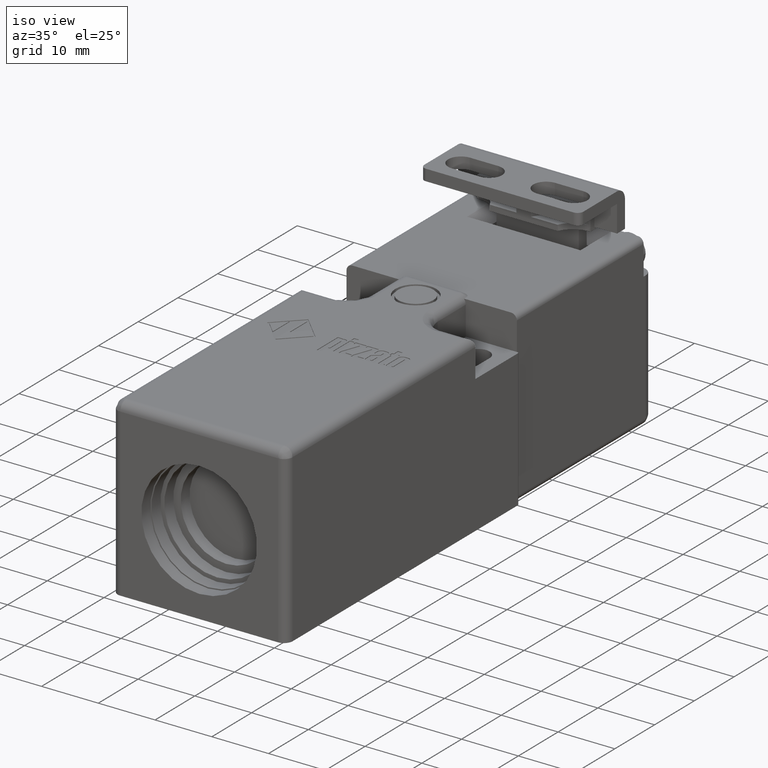
[diagram: clean part render]
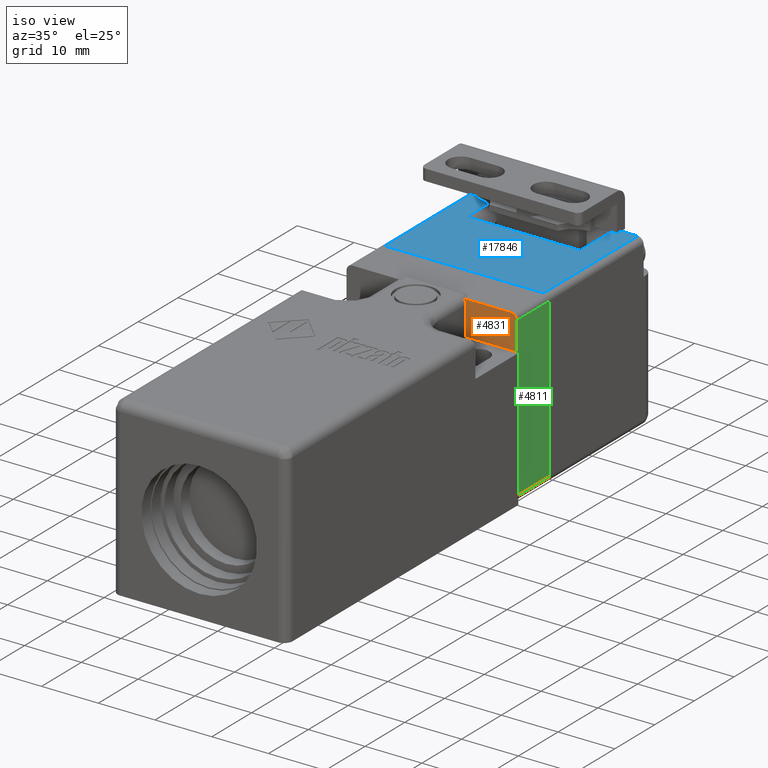
[diagram: same view with three faces highlighted in distinct colors, each labeled with its STEP entity id]
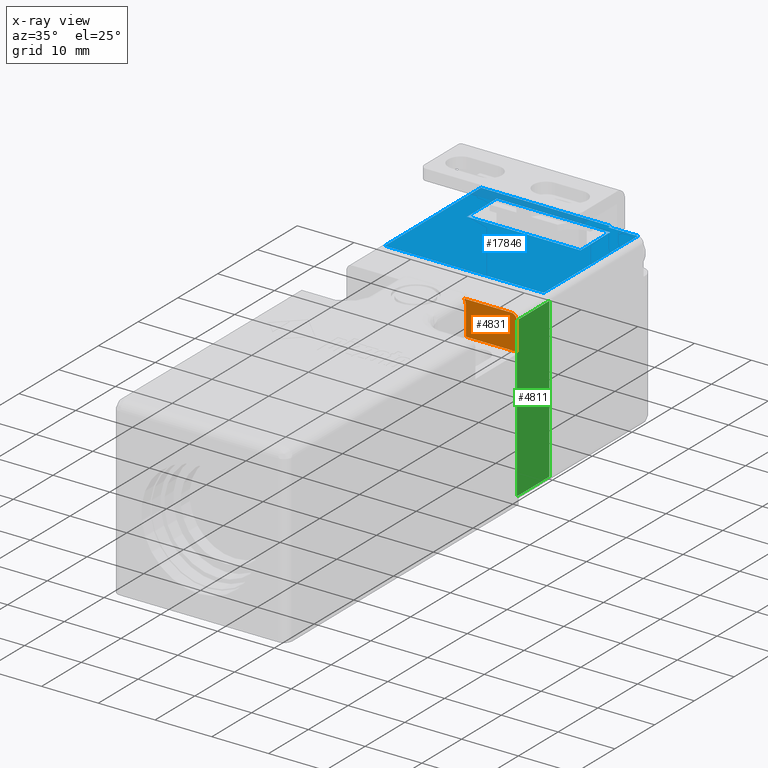
[diagram: x-ray of the same camera — body ghosted, the three highlighted faces saturated]
A machine part, iso view with three faces highlighted in distinct colors.
The next image is the same camera in x-ray (body ghosted, the three faces saturated) — at least one of them is partly hidden behind the body in this view.
Their STEP definitions:

[orange] entity #4831 — the highlighted planar face has unit normal (0, 1, 0).
#2204=CARTESIAN_POINT('',(12.399999999999944,-32.399999999999991,23.999999999999982));
#2205=VERTEX_POINT('',#2204);
#3896=CARTESIAN_POINT('',(3.099999999999947,-32.399999999999991,29.999999999999986));
#3897=VERTEX_POINT('',#3896);
#3904=CARTESIAN_POINT('',(11.399999999999938,-32.399999999999991,29.999999999999986));
#3905=VERTEX_POINT('',#3904);
#3906=CARTESIAN_POINT('',(11.399999999999938,-32.399999999999991,29.999999999999986));
#3907=DIRECTION('',(-1.0,0.0,0.0));
#3908=VECTOR('',#3907,8.299999999999992);
#3909=LINE('',#3906,#3908);
#3910=EDGE_CURVE('',#3905,#3897,#3909,.T.);
#4171=CARTESIAN_POINT('',(3.399999999999948,-32.399999999999991,23.999999999999982));
#4172=VERTEX_POINT('',#4171);
#4173=CARTESIAN_POINT('',(3.399999999999948,-32.399999999999991,29.099999999999980));
#4174=VERTEX_POINT('',#4173);
#4175=CARTESIAN_POINT('',(3.399999999999948,-32.399999999999991,23.999999999999982));
#4176=DIRECTION('',(0.0,0.0,1.0));
#4177=VECTOR('',#4176,5.099999999999998);
#4178=LINE('',#4175,#4177);
#4179=EDGE_CURVE('',#4172,#4174,#4178,.T.);
#4245=CARTESIAN_POINT('',(3.399999999999949,-32.399999999999999,23.999999999999982));
#4246=DIRECTION('',(1.0,0.0,0.0));
#4247=VECTOR('',#4246,8.999999999999995);
#4248=LINE('',#4245,#4247);
#4249=EDGE_CURVE('',#4172,#2205,#4248,.T.);
#4633=CARTESIAN_POINT('',(1.899999999999949,-32.399999999999991,29.099999999999980));
#4634=DIRECTION('',(0.0,1.0,0.0));
#4635=DIRECTION('',(0.0,0.0,1.0));
#4636=AXIS2_PLACEMENT_3D('',#4633,#4634,#4635);
#4637=CIRCLE('',#4636,1.500000000000001);
#4638=EDGE_CURVE('',#3897,#4174,#4637,.T.);
#4788=CARTESIAN_POINT('',(12.399999999999944,-32.399999999999991,28.999999999999986));
#4789=VERTEX_POINT('',#4788);
#4796=CARTESIAN_POINT('',(12.399999999999944,-32.399999999999991,23.999999999999982));
#4797=DIRECTION('',(0.0,0.0,1.0));
#4798=VECTOR('',#4797,5.000000000000004);
#4799=LINE('',#4796,#4798);
#4800=EDGE_CURVE('',#2205,#4789,#4799,.T.);
#4812=CARTESIAN_POINT('',(-2.600000000000057,-32.399999999999991,-1.776357E-014));
#4813=DIRECTION('',(0.0,1.0,0.0));
#4814=DIRECTION('',(0.0,0.0,1.0));
#4815=AXIS2_PLACEMENT_3D('',#4812,#4813,#4814);
#4816=PLANE('',#4815);
#4817=ORIENTED_EDGE('',*,*,#3910,.T.);
#4818=ORIENTED_EDGE('',*,*,#4638,.T.);
#4819=ORIENTED_EDGE('',*,*,#4179,.F.);
#4820=ORIENTED_EDGE('',*,*,#4249,.T.);
#4821=ORIENTED_EDGE('',*,*,#4800,.T.);
#4822=CARTESIAN_POINT('',(11.399999999999938,-32.399999999999991,28.999999999999986));
#4823=DIRECTION('',(0.0,1.0,0.0));
#4824=DIRECTION('',(0.0,0.0,1.0));
#4825=AXIS2_PLACEMENT_3D('',#4822,#4823,#4824);
#4826=CIRCLE('',#4825,1.000000000000001);
#4827=EDGE_CURVE('',#3905,#4789,#4826,.T.);
#4828=ORIENTED_EDGE('',*,*,#4827,.F.);
#4829=EDGE_LOOP('',(#4817,#4818,#4819,#4820,#4821,#4828));
#4830=FACE_OUTER_BOUND('',#4829,.T.);
#4831=ADVANCED_FACE('',(#4830),#4816,.F.);

[blue] entity #17846 — the highlighted planar face has unit normal (0, 0, -1).
#17123=CARTESIAN_POINT('',(11.399999999999983,-0.500000000000000,30.000000000000007));
#17124=VERTEX_POINT('',#17123);
#17125=CARTESIAN_POINT('',(6.199999999999994,-0.500000000000000,30.000000000000007));
#17126=VERTEX_POINT('',#17125);
#17127=CARTESIAN_POINT('',(11.399999999999983,-0.500000000000000,30.000000000000007));
#17128=DIRECTION('',(-1.0,0.0,0.0));
#17129=VECTOR('',#17128,5.199999999999989);
#17130=LINE('',#17127,#17129);
#17131=EDGE_CURVE('',#17124,#17126,#17130,.T.);
#17235=CARTESIAN_POINT('',(11.399999999999968,-24.200000000000006,29.999999999999993));
#17236=VERTEX_POINT('',#17235);
#17244=CARTESIAN_POINT('',(-16.600000000000009,-24.200000000000017,29.999999999999993));
#17245=VERTEX_POINT('',#17244);
#17246=CARTESIAN_POINT('',(11.399999999999968,-24.200000000000006,29.999999999999993));
#17247=DIRECTION('',(-1.0,0.0,0.0));
#17248=VECTOR('',#17247,27.999999999999979);
#17249=LINE('',#17246,#17248);
#17250=EDGE_CURVE('',#17236,#17245,#17249,.T.);
#17775=CARTESIAN_POINT('',(12.799999999999983,1.210000000000001,29.999999999999993));
#17776=DIRECTION('',(0.0,0.0,-1.0));
#17777=DIRECTION('',(0.0,-1.0,0.0));
#17778=AXIS2_PLACEMENT_3D('',#17775,#17776,#17777);
#17779=PLANE('',#17778);
#17780=CARTESIAN_POINT('',(6.199999999999994,0.0,30.000000000000007));
#17781=VERTEX_POINT('',#17780);
#17782=CARTESIAN_POINT('',(6.199999999999994,-0.500000000000000,30.000000000000007));
#17783=DIRECTION('',(0.0,1.0,0.0));
#17784=VECTOR('',#17783,0.500000000000000);
#17785=LINE('',#17782,#17784);
#17786=EDGE_CURVE('',#17126,#17781,#17785,.T.);
#17787=ORIENTED_EDGE('',*,*,#17786,.T.);
#17788=CARTESIAN_POINT('',(-16.599999999999991,-1.421085E-014,30.000000000000007));
#17789=VERTEX_POINT('',#17788);
#17790=CARTESIAN_POINT('',(6.199999999999994,0.0,30.000000000000007));
#17791=DIRECTION('',(-1.0,0.0,0.0));
#17792=VECTOR('',#17791,22.799999999999983);
#17793=LINE('',#17790,#17792);
#17794=EDGE_CURVE('',#17781,#17789,#17793,.T.);
#17795=ORIENTED_EDGE('',*,*,#17794,.T.);
#17796=CARTESIAN_POINT('',(-16.600000000000009,-1.421085E-014,29.999999999999993));
#17797=DIRECTION('',(0.0,-1.0,0.0));
#17798=VECTOR('',#17797,24.200000000000003);
#17799=LINE('',#17796,#17798);
#17800=EDGE_CURVE('',#17789,#17245,#17799,.T.);
#17801=ORIENTED_EDGE('',*,*,#17800,.T.);
#17802=ORIENTED_EDGE('',*,*,#17250,.F.);
#17803=CARTESIAN_POINT('',(11.399999999999968,-24.200000000000006,29.999999999999993));
#17804=DIRECTION('',(0.0,1.0,0.0));
#17805=VECTOR('',#17804,23.700000000000006);
#17806=LINE('',#17803,#17805);
#17807=EDGE_CURVE('',#17236,#17124,#17806,.T.);
#17808=ORIENTED_EDGE('',*,*,#17807,.T.);
#17809=ORIENTED_EDGE('',*,*,#17131,.T.);
#17810=EDGE_LOOP('',(#17787,#17795,#17801,#17802,#17808,#17809));
#17811=FACE_OUTER_BOUND('',#17810,.T.);
#17812=CARTESIAN_POINT('',(7.399999999999997,-9.250000000000011,30.0));
#17813=VERTEX_POINT('',#17812);
#17814=CARTESIAN_POINT('',(-12.600000000000017,-9.250000000000011,30.000000000000007));
#17815=VERTEX_POINT('',#17814);
#17816=CARTESIAN_POINT('',(7.399999999999997,-9.250000000000004,30.0));
#17817=DIRECTION('',(-1.0,0.0,0.0));
#17818=VECTOR('',#17817,20.000000000000014);
#17819=LINE('',#17816,#17818);
#17820=EDGE_CURVE('',#17813,#17815,#17819,.T.);
#17821=ORIENTED_EDGE('',*,*,#17820,.T.);
#17822=CARTESIAN_POINT('',(-12.600000000000017,-1.750000000000014,30.000000000000007));
#17823=VERTEX_POINT('',#17822);
#17824=CARTESIAN_POINT('',(-12.600000000000032,-1.750000000000007,29.999999999999993));
#17825=DIRECTION('',(0.0,-1.0,0.0));
#17826=VECTOR('',#17825,7.500000000000004);
#17827=LINE('',#17824,#17826);
#17828=EDGE_CURVE('',#17823,#17815,#17827,.T.);
#17829=ORIENTED_EDGE('',*,*,#17828,.F.);
#17830=CARTESIAN_POINT('',(7.399999999999997,-1.750000000000000,30.000000000000007));
#17831=VERTEX_POINT('',#17830);
#17832=CARTESIAN_POINT('',(-12.600000000000017,-1.749999999999993,30.000000000000007));
#17833=DIRECTION('',(1.0,0.0,0.0));
#17834=VECTOR('',#17833,20.000000000000014);
#17835=LINE('',#17832,#17834);
#17836=EDGE_CURVE('',#17823,#17831,#17835,.T.);
#17837=ORIENTED_EDGE('',*,*,#17836,.T.);
#17838=CARTESIAN_POINT('',(7.399999999999984,-1.750000000000000,29.999999999999993));
#17839=DIRECTION('',(0.0,-1.0,0.0));
#17840=VECTOR('',#17839,7.500000000000011);
#17841=LINE('',#17838,#17840);
#17842=EDGE_CURVE('',#17831,#17813,#17841,.T.);
#17843=ORIENTED_EDGE('',*,*,#17842,.T.);
#17844=EDGE_LOOP('',(#17821,#17829,#17837,#17843));
#17845=FACE_BOUND('',#17844,.T.);
#17846=ADVANCED_FACE('',(#17811,#17845),#17779,.F.);

[green] entity #4811 — the highlighted planar face has unit normal (1, 0, 0).
#2195=CARTESIAN_POINT('',(12.399999999999944,-32.399999999999991,0.999999999999979));
#2196=VERTEX_POINT('',#2195);
#2204=CARTESIAN_POINT('',(12.399999999999944,-32.399999999999991,23.999999999999982));
#2205=VERTEX_POINT('',#2204);
#2206=CARTESIAN_POINT('',(12.399999999999944,-32.399999999999991,0.999999999999979));
#2207=DIRECTION('',(0.0,0.0,1.0));
#2208=VECTOR('',#2207,23.000000000000004);
#2209=LINE('',#2206,#2208);
#2210=EDGE_CURVE('',#2196,#2205,#2209,.T.);
#3986=CARTESIAN_POINT('',(12.399999999999944,-24.199999999999996,28.999999999999986));
#3987=VERTEX_POINT('',#3986);
#3995=CARTESIAN_POINT('',(12.399999999999944,-24.199999999999996,0.999999999999979));
#3996=VERTEX_POINT('',#3995);
#3997=CARTESIAN_POINT('',(12.399999999999944,-24.199999999999996,0.999999999999979));
#3998=DIRECTION('',(0.0,0.0,1.0));
#3999=VECTOR('',#3998,28.000000000000007);
#4000=LINE('',#3997,#3999);
#4001=EDGE_CURVE('',#3996,#3987,#4000,.T.);
#4782=CARTESIAN_POINT('',(12.399999999999944,-23.789999999999996,-0.400000000000020));
#4783=DIRECTION('',(1.0,0.0,0.0));
#4784=DIRECTION('',(0.0,0.0,1.0));
#4785=AXIS2_PLACEMENT_3D('',#4782,#4783,#4784);
#4786=PLANE('',#4785);
#4787=ORIENTED_EDGE('',*,*,#4001,.T.);
#4788=CARTESIAN_POINT('',(12.399999999999944,-32.399999999999991,28.999999999999986));
#4789=VERTEX_POINT('',#4788);
#4790=CARTESIAN_POINT('',(12.399999999999944,-32.399999999999991,28.999999999999986));
#4791=DIRECTION('',(0.0,1.0,0.0));
#4792=VECTOR('',#4791,8.199999999999999);
#4793=LINE('',#4790,#4792);
#4794=EDGE_CURVE('',#4789,#3987,#4793,.T.);
#4795=ORIENTED_EDGE('',*,*,#4794,.F.);
#4796=CARTESIAN_POINT('',(12.399999999999944,-32.399999999999991,23.999999999999982));
#4797=DIRECTION('',(0.0,0.0,1.0));
#4798=VECTOR('',#4797,5.000000000000004);
#4799=LINE('',#4796,#4798);
#4800=EDGE_CURVE('',#2205,#4789,#4799,.T.);
#4801=ORIENTED_EDGE('',*,*,#4800,.F.);
#4802=ORIENTED_EDGE('',*,*,#2210,.F.);
#4803=CARTESIAN_POINT('',(12.399999999999944,-24.199999999999996,0.999999999999982));
#4804=DIRECTION('',(0.0,-1.0,0.0));
#4805=VECTOR('',#4804,8.200000000000003);
#4806=LINE('',#4803,#4805);
#4807=EDGE_CURVE('',#3996,#2196,#4806,.T.);
#4808=ORIENTED_EDGE('',*,*,#4807,.F.);
#4809=EDGE_LOOP('',(#4787,#4795,#4801,#4802,#4808));
#4810=FACE_OUTER_BOUND('',#4809,.T.);
#4811=ADVANCED_FACE('',(#4810),#4786,.T.);